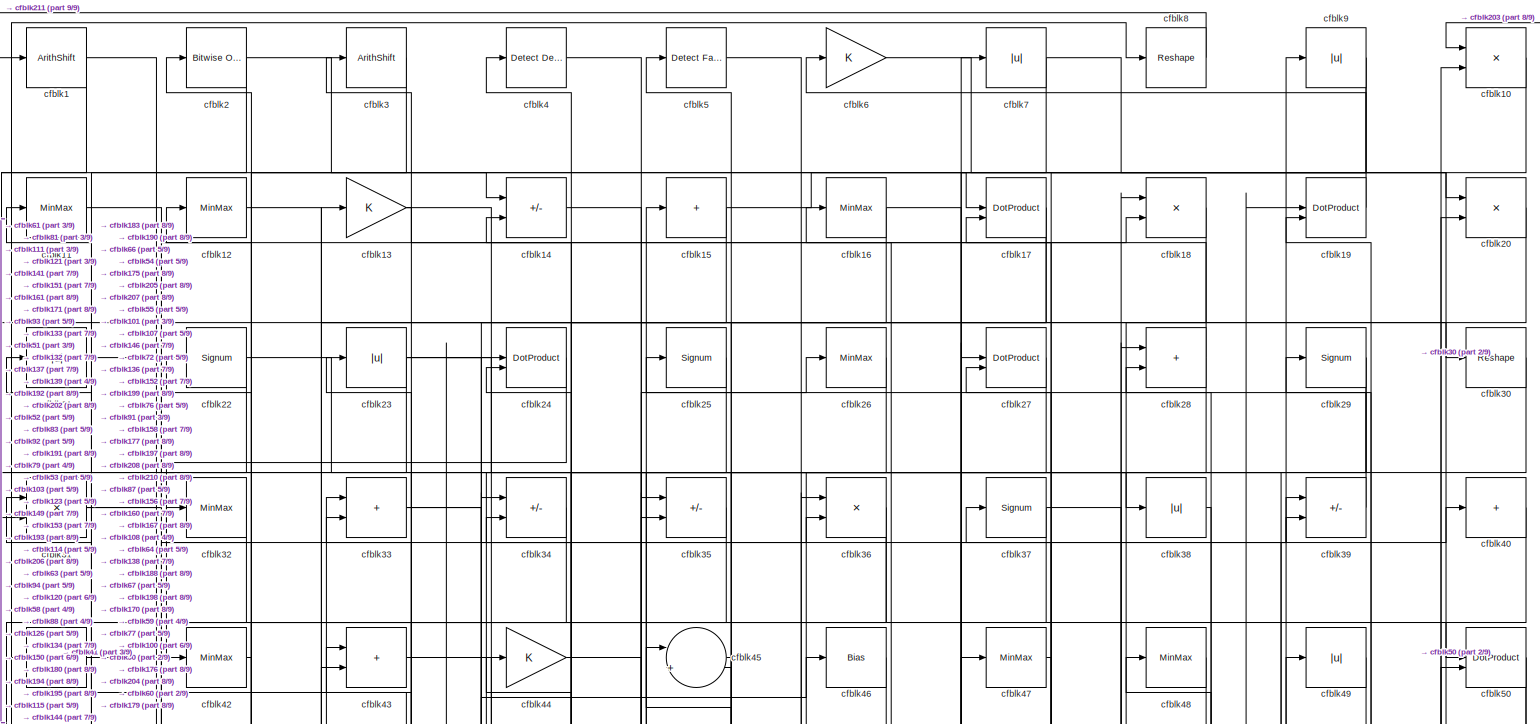
[diagram: root canvas - part 1/9, full width, top band]
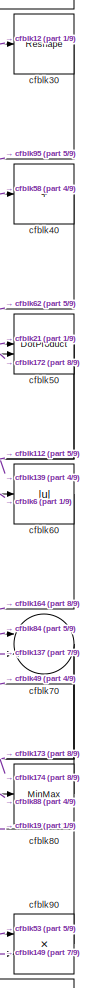
[diagram: root canvas - part 2/9, top right region]
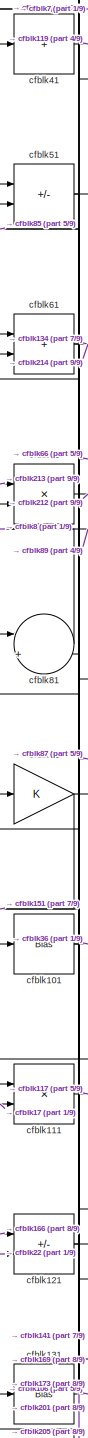
[diagram: root canvas - part 3/9, middle left region]
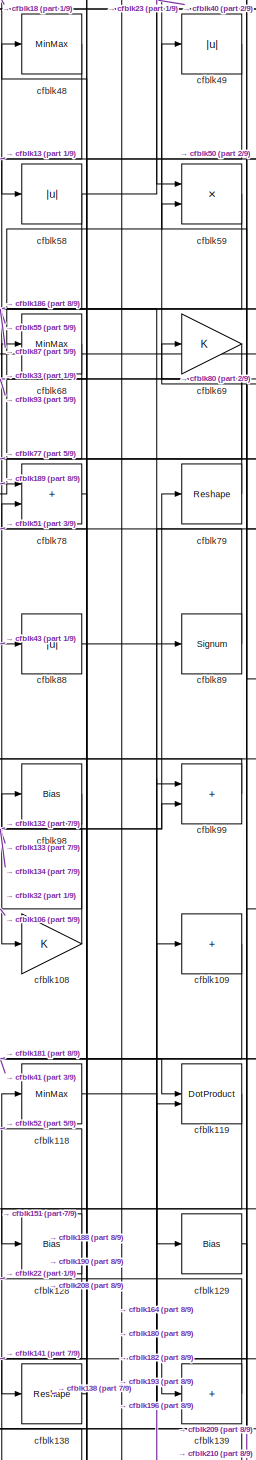
[diagram: root canvas - part 4/9, middle right region]
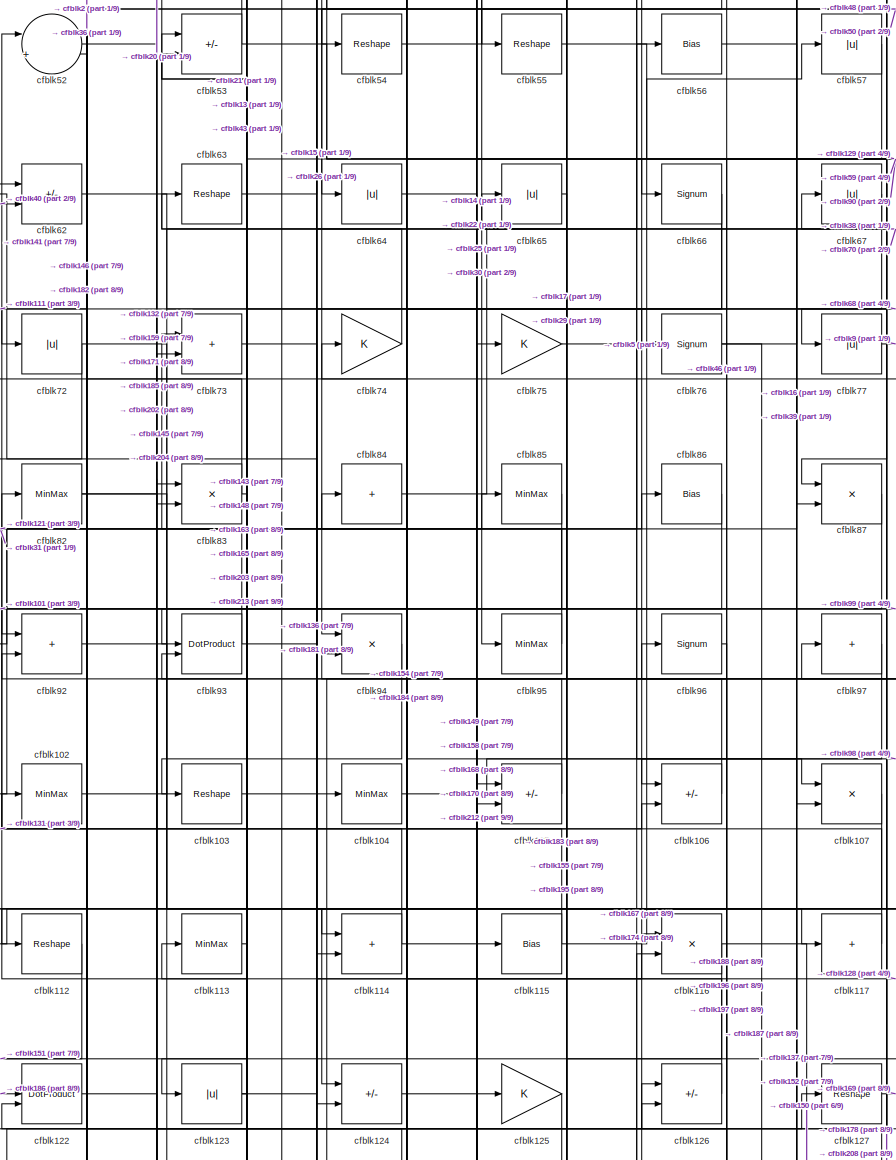
[diagram: root canvas - part 5/9, central region]
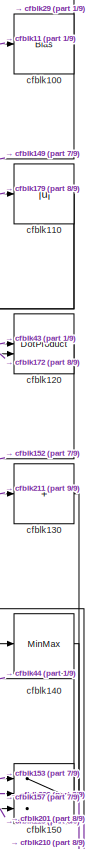
[diagram: root canvas - part 6/9, middle right region]
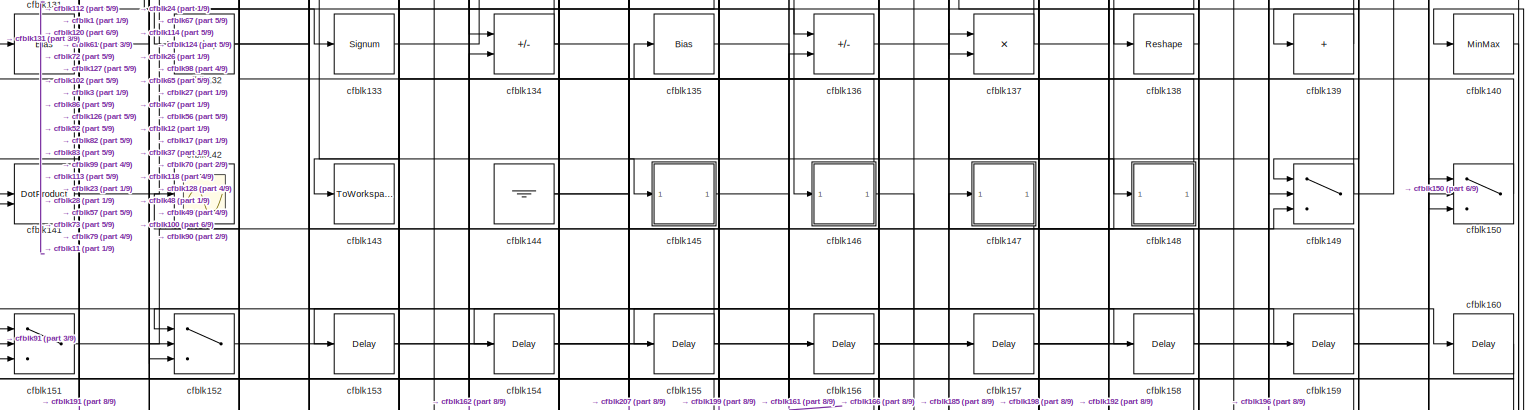
[diagram: root canvas - part 7/9, full width, middle band]
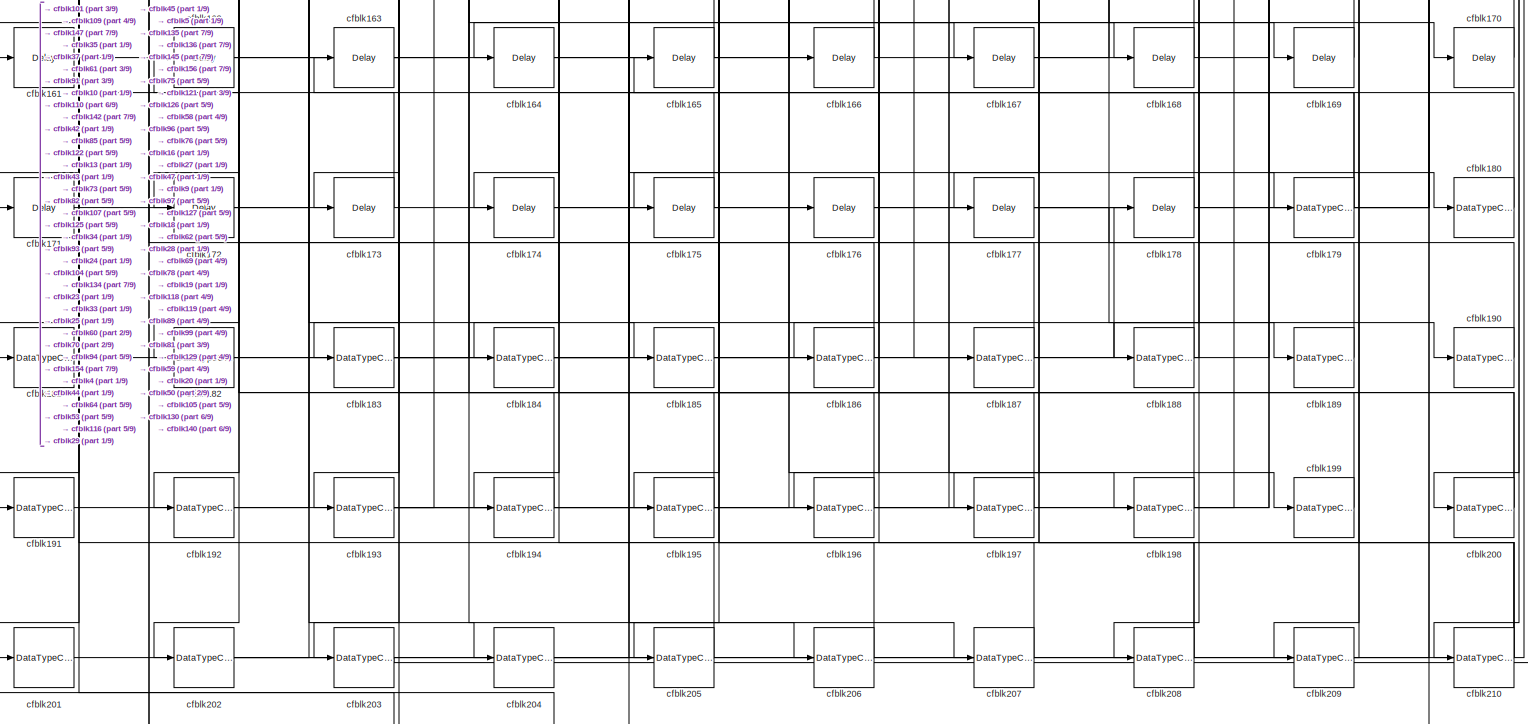
[diagram: root canvas - part 8/9, full width, bottom band]
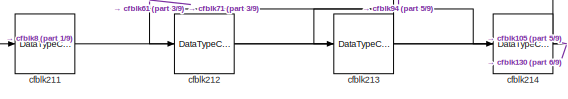
[diagram: root canvas - part 9/9, bottom left region]
MODEL slx_0b9be766a5e4
KIND model
CONFIG AbsTol = auto
CONFIG EnableMultiTasking = off
CONFIG FixedStep = auto
CONFIG MaxStep = auto
CONFIG MinStep = auto
CONFIG RelTol = 1e-3
CONFIG SampleTimeConstraint = Unconstrained
CONFIG SolverName = VariableStepAuto
CONFIG StartTime = 0.0
CONFIG StopTime = 10.0
BLOCK [ArithShift] cfblk1
  BitShiftNumber = 8
  InputPortMap = u0
BLOCK [Product] cfblk10
  Inputs = */
  RndMeth = Zero
  SaturateOnIntegerOverflow = on
BLOCK [Bias] cfblk100
  Bias = 0.0
  SaturateOnIntegerOverflow = off
BLOCK [Bias] cfblk101
  Bias = 0.0
  SaturateOnIntegerOverflow = off
BLOCK [MinMax] cfblk102
BLOCK [Reshape] cfblk103
BLOCK [MinMax] cfblk104
BLOCK [Sum] cfblk105
  IconShape = rectangular
  Inputs = +-
BLOCK [Sum] cfblk106
  IconShape = rectangular
  Inputs = +-
BLOCK [Product] cfblk107
  Inputs = */
  RndMeth = Zero
  SaturateOnIntegerOverflow = on
BLOCK [Gain] cfblk108
BLOCK [Sum] cfblk109
  IconShape = rectangular
  Inputs = +
BLOCK [MinMax] cfblk11
BLOCK [Abs] cfblk110
  SaturateOnIntegerOverflow = off
BLOCK [Product] cfblk111
  Inputs = */
  RndMeth = Zero
  SaturateOnIntegerOverflow = on
BLOCK [Reshape] cfblk112
BLOCK [MinMax] cfblk113
BLOCK [Sum] cfblk114
  IconShape = rectangular
BLOCK [Bias] cfblk115
  Bias = 0.0
  SaturateOnIntegerOverflow = off
BLOCK [Product] cfblk116
  Inputs = */
  RndMeth = Zero
  SaturateOnIntegerOverflow = on
BLOCK [Sum] cfblk117
  IconShape = rectangular
  Inputs = +
BLOCK [MinMax] cfblk118
BLOCK [DotProduct] cfblk119
  OutDataTypeStr = Inherit: Inherit via internal rule
BLOCK [MinMax] cfblk12
BLOCK [DotProduct] cfblk120
  OutDataTypeStr = Inherit: Inherit via internal rule
BLOCK [Sum] cfblk121
  IconShape = rectangular
  Inputs = +-
BLOCK [DotProduct] cfblk122
  OutDataTypeStr = Inherit: Inherit via internal rule
BLOCK [Abs] cfblk123
  SaturateOnIntegerOverflow = off
BLOCK [Sum] cfblk124
  IconShape = rectangular
  Inputs = +-
BLOCK [Gain] cfblk125
BLOCK [Sum] cfblk126
  IconShape = rectangular
  Inputs = +-
BLOCK [Reshape] cfblk127
BLOCK [Bias] cfblk128
  Bias = 0.0
  SaturateOnIntegerOverflow = off
BLOCK [Bias] cfblk129
  Bias = 0.0
  SaturateOnIntegerOverflow = off
BLOCK [Gain] cfblk13
BLOCK [Sum] cfblk130
  IconShape = rectangular
  Inputs = +
BLOCK [Bias] cfblk131
  Bias = 0.0
  SaturateOnIntegerOverflow = off
BLOCK [Reshape] cfblk132
BLOCK [Signum] cfblk133
BLOCK [Sum] cfblk134
  IconShape = rectangular
  Inputs = +-
BLOCK [Bias] cfblk135
  Bias = 0.0
  SaturateOnIntegerOverflow = off
BLOCK [Sum] cfblk136
  IconShape = rectangular
  Inputs = +-
BLOCK [Product] cfblk137
  Inputs = */
  RndMeth = Zero
  SaturateOnIntegerOverflow = on
BLOCK [Reshape] cfblk138
BLOCK [Sum] cfblk139
  IconShape = rectangular
  Inputs = +
BLOCK [Sum] cfblk14
  IconShape = rectangular
  Inputs = +-
BLOCK [MinMax] cfblk140
BLOCK [DotProduct] cfblk141
  OutDataTypeStr = Inherit: Inherit via internal rule
BLOCK [Scope] cfblk142
  Floating = off
  NumInputPorts = 1
  ScopeSpecificationString = Simulink.scopes.TimeScopeBlockCfg('CurrentConfiguration', extmgr.ConfigurationSet(extmgr.Configuration('Core','General UI',true),extmgr.Configuration('Core','Source UI',true),extmgr.Configuration('Sources','WiredSimulink',true,'DataLoggingVariableName','ScopeData2','DataLoggingSaveFormat','Array','DataLoggingLimitDataPoints',true,'DataLoggingDecimation','1'),extmgr.Configuration('Visuals','Time Do...<+868ch>
BLOCK [ToWorkspace] cfblk143
  MaxDataPoints = inf
  SampleTime = -1
  SaveFormat = Timeseries
  VariableName = simout
BLOCK [Ground] cfblk144
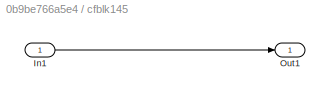
BLOCK [SubSystem] cfblk145
  LibrarySourceBlock = hdlsllib/Ports &\nSubsystems/Subsystem
BLOCK [Inport] cfblk145/In1
BLOCK [Outport] cfblk145/Out1
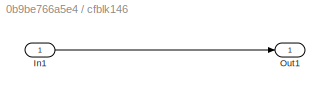
BLOCK [SubSystem] cfblk146
  LibrarySourceBlock = hdlsllib/Ports &\nSubsystems/Subsystem
BLOCK [Inport] cfblk146/In1
BLOCK [Outport] cfblk146/Out1
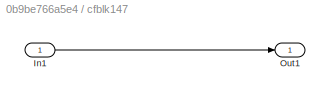
BLOCK [SubSystem] cfblk147
  LibrarySourceBlock = hdlsllib/Ports &\nSubsystems/Subsystem
BLOCK [Inport] cfblk147/In1
BLOCK [Outport] cfblk147/Out1
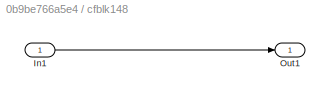
BLOCK [SubSystem] cfblk148
  LibrarySourceBlock = hdlsllib/Ports &\nSubsystems/Subsystem
BLOCK [Inport] cfblk148/In1
BLOCK [Outport] cfblk148/Out1
BLOCK [Switch] cfblk149
  InputSameDT = off
  SaturateOnIntegerOverflow = off
BLOCK [Sum] cfblk15
  IconShape = rectangular
  Inputs = +
BLOCK [Switch] cfblk150
  InputSameDT = off
  SaturateOnIntegerOverflow = off
BLOCK [Switch] cfblk151
  InputSameDT = off
  SaturateOnIntegerOverflow = off
BLOCK [Switch] cfblk152
  InputSameDT = off
  SaturateOnIntegerOverflow = off
BLOCK [Delay] cfblk153
  InputPortMap = u0
  SampleTime = 1
BLOCK [Delay] cfblk154
  InputPortMap = u0
  SampleTime = 1
BLOCK [Delay] cfblk155
  InputPortMap = u0
  SampleTime = 1
BLOCK [Delay] cfblk156
  InputPortMap = u0
  SampleTime = 1
BLOCK [Delay] cfblk157
  InputPortMap = u0
  SampleTime = 1
BLOCK [Delay] cfblk158
  InputPortMap = u0
  SampleTime = 1
BLOCK [Delay] cfblk159
  InputPortMap = u0
  SampleTime = 1
BLOCK [MinMax] cfblk16
BLOCK [Delay] cfblk160
  InputPortMap = u0
  SampleTime = 1
BLOCK [Delay] cfblk161
  InputPortMap = u0
  SampleTime = 1
BLOCK [Delay] cfblk162
  InputPortMap = u0
  SampleTime = 1
BLOCK [Delay] cfblk163
  InputPortMap = u0
  SampleTime = 1
BLOCK [Delay] cfblk164
  InputPortMap = u0
  SampleTime = 1
BLOCK [Delay] cfblk165
  InputPortMap = u0
  SampleTime = 1
BLOCK [Delay] cfblk166
  InputPortMap = u0
  SampleTime = 1
BLOCK [Delay] cfblk167
  InputPortMap = u0
  SampleTime = 1
BLOCK [Delay] cfblk168
  InputPortMap = u0
  SampleTime = 1
BLOCK [Delay] cfblk169
  InputPortMap = u0
  SampleTime = 1
BLOCK [DotProduct] cfblk17
  OutDataTypeStr = Inherit: Inherit via internal rule
BLOCK [Delay] cfblk170
  InputPortMap = u0
  SampleTime = 1
BLOCK [Delay] cfblk171
  InputPortMap = u0
  SampleTime = 1
BLOCK [Delay] cfblk172
  InputPortMap = u0
  SampleTime = 1
BLOCK [Delay] cfblk173
  InputPortMap = u0
  SampleTime = 1
BLOCK [Delay] cfblk174
  InputPortMap = u0
  SampleTime = 1
BLOCK [Delay] cfblk175
  InputPortMap = u0
  SampleTime = 1
BLOCK [Delay] cfblk176
  InputPortMap = u0
  SampleTime = 1
BLOCK [Delay] cfblk177
  InputPortMap = u0
  SampleTime = 1
BLOCK [Delay] cfblk178
  InputPortMap = u0
  SampleTime = 1
BLOCK [DataTypeConversion] cfblk179
  RndMeth = Floor
  SaturateOnIntegerOverflow = off
BLOCK [Product] cfblk18
  Inputs = */
  RndMeth = Zero
  SaturateOnIntegerOverflow = on
BLOCK [DataTypeConversion] cfblk180
  OutDataTypeStr = uint8
  RndMeth = Floor
  SaturateOnIntegerOverflow = off
BLOCK [DataTypeConversion] cfblk181
  OutDataTypeStr = uint8
  RndMeth = Floor
  SaturateOnIntegerOverflow = off
BLOCK [DataTypeConversion] cfblk182
  OutDataTypeStr = uint8
  RndMeth = Floor
  SaturateOnIntegerOverflow = off
BLOCK [DataTypeConversion] cfblk183
  RndMeth = Floor
  SaturateOnIntegerOverflow = off
BLOCK [DataTypeConversion] cfblk184
  OutDataTypeStr = uint8
  RndMeth = Floor
  SaturateOnIntegerOverflow = off
BLOCK [DataTypeConversion] cfblk185
  OutDataTypeStr = uint8
  RndMeth = Floor
  SaturateOnIntegerOverflow = off
BLOCK [DataTypeConversion] cfblk186
  OutDataTypeStr = uint8
  RndMeth = Floor
  SaturateOnIntegerOverflow = off
BLOCK [DataTypeConversion] cfblk187
  OutDataTypeStr = uint8
  RndMeth = Floor
  SaturateOnIntegerOverflow = off
BLOCK [DataTypeConversion] cfblk188
  RndMeth = Floor
  SaturateOnIntegerOverflow = off
BLOCK [DataTypeConversion] cfblk189
  OutDataTypeStr = uint8
  RndMeth = Floor
  SaturateOnIntegerOverflow = off
BLOCK [DotProduct] cfblk19
  OutDataTypeStr = Inherit: Inherit via internal rule
BLOCK [DataTypeConversion] cfblk190
  OutDataTypeStr = uint8
  RndMeth = Floor
  SaturateOnIntegerOverflow = off
BLOCK [DataTypeConversion] cfblk191
  OutDataTypeStr = uint8
  RndMeth = Floor
  SaturateOnIntegerOverflow = off
BLOCK [DataTypeConversion] cfblk192
  OutDataTypeStr = uint8
  RndMeth = Floor
  SaturateOnIntegerOverflow = off
BLOCK [DataTypeConversion] cfblk193
  RndMeth = Floor
  SaturateOnIntegerOverflow = off
BLOCK [DataTypeConversion] cfblk194
  OutDataTypeStr = uint8
  RndMeth = Floor
  SaturateOnIntegerOverflow = off
BLOCK [DataTypeConversion] cfblk195
  OutDataTypeStr = uint8
  RndMeth = Floor
  SaturateOnIntegerOverflow = off
BLOCK [DataTypeConversion] cfblk196
  RndMeth = Floor
  SaturateOnIntegerOverflow = off
BLOCK [DataTypeConversion] cfblk197
  OutDataTypeStr = uint8
  RndMeth = Floor
  SaturateOnIntegerOverflow = off
BLOCK [DataTypeConversion] cfblk198
  RndMeth = Floor
  SaturateOnIntegerOverflow = off
BLOCK [DataTypeConversion] cfblk199
  OutDataTypeStr = uint8
  RndMeth = Floor
  SaturateOnIntegerOverflow = off
BLOCK [Reference] cfblk2  REF=simulink/Logic and Bit
Operations/Bitwise
Operator
  LibrarySourceBlock = hdlsllib/Logic and Bit\nOperations/Bitwise\nOperator
  SourceBlock = simulink/Logic and Bit\nOperations/Bitwise\nOperator
  SourceType = Bitwise Operator
BLOCK [Product] cfblk20
  Inputs = */
  RndMeth = Zero
  SaturateOnIntegerOverflow = on
BLOCK [DataTypeConversion] cfblk200
  RndMeth = Floor
  SaturateOnIntegerOverflow = off
BLOCK [DataTypeConversion] cfblk201
  OutDataTypeStr = uint8
  RndMeth = Floor
  SaturateOnIntegerOverflow = off
BLOCK [DataTypeConversion] cfblk202
  RndMeth = Floor
  SaturateOnIntegerOverflow = off
BLOCK [DataTypeConversion] cfblk203
  OutDataTypeStr = uint8
  RndMeth = Floor
  SaturateOnIntegerOverflow = off
BLOCK [DataTypeConversion] cfblk204
  OutDataTypeStr = uint8
  RndMeth = Floor
  SaturateOnIntegerOverflow = off
BLOCK [DataTypeConversion] cfblk205
  OutDataTypeStr = uint8
  RndMeth = Floor
  SaturateOnIntegerOverflow = off
BLOCK [DataTypeConversion] cfblk206
  OutDataTypeStr = uint8
  RndMeth = Floor
  SaturateOnIntegerOverflow = off
BLOCK [DataTypeConversion] cfblk207
  OutDataTypeStr = uint8
  RndMeth = Floor
  SaturateOnIntegerOverflow = off
BLOCK [DataTypeConversion] cfblk208
  RndMeth = Floor
  SaturateOnIntegerOverflow = off
BLOCK [DataTypeConversion] cfblk209
  OutDataTypeStr = uint8
  RndMeth = Floor
  SaturateOnIntegerOverflow = off
BLOCK [Abs] cfblk21
  SaturateOnIntegerOverflow = off
BLOCK [DataTypeConversion] cfblk210
  RndMeth = Floor
  SaturateOnIntegerOverflow = off
BLOCK [DataTypeConversion] cfblk211
  OutDataTypeStr = uint8
  RndMeth = Floor
  SaturateOnIntegerOverflow = off
BLOCK [DataTypeConversion] cfblk212
  OutDataTypeStr = uint8
  RndMeth = Floor
  SaturateOnIntegerOverflow = off
BLOCK [DataTypeConversion] cfblk213
  OutDataTypeStr = uint8
  RndMeth = Floor
  SaturateOnIntegerOverflow = off
BLOCK [DataTypeConversion] cfblk214
  OutDataTypeStr = uint8
  RndMeth = Floor
  SaturateOnIntegerOverflow = off
BLOCK [Signum] cfblk22
BLOCK [Abs] cfblk23
  SaturateOnIntegerOverflow = off
BLOCK [DotProduct] cfblk24
  OutDataTypeStr = Inherit: Inherit via internal rule
BLOCK [Signum] cfblk25
BLOCK [MinMax] cfblk26
BLOCK [DotProduct] cfblk27
  OutDataTypeStr = Inherit: Inherit via internal rule
BLOCK [Sum] cfblk28
  IconShape = rectangular
BLOCK [Signum] cfblk29
BLOCK [ArithShift] cfblk3
  BitShiftNumber = 8
  InputPortMap = u0
BLOCK [Reshape] cfblk30
BLOCK [Product] cfblk31
  Inputs = */
  RndMeth = Zero
  SaturateOnIntegerOverflow = on
BLOCK [MinMax] cfblk32
BLOCK [Sum] cfblk33
  IconShape = rectangular
BLOCK [Sum] cfblk34
  IconShape = rectangular
  Inputs = +-
BLOCK [Sum] cfblk35
  IconShape = rectangular
  Inputs = +-
BLOCK [Product] cfblk36
  Inputs = */
  RndMeth = Zero
  SaturateOnIntegerOverflow = on
BLOCK [Signum] cfblk37
BLOCK [Abs] cfblk38
  SaturateOnIntegerOverflow = off
BLOCK [Sum] cfblk39
  IconShape = rectangular
  Inputs = +-
BLOCK [Reference] cfblk4  REF=simulink/Logic and Bit
Operations/Detect
Decrease
  LibrarySourceBlock = hdlsllib/Logic and Bit\nOperations/Detect\nDecrease
  SourceBlock = simulink/Logic and Bit\nOperations/Detect\nDecrease
  SourceType = Detect Decrease
BLOCK [Sum] cfblk40
  IconShape = rectangular
  Inputs = +
BLOCK [Sum] cfblk41
  IconShape = rectangular
  Inputs = +
BLOCK [MinMax] cfblk42
BLOCK [Sum] cfblk43
  IconShape = rectangular
BLOCK [Gain] cfblk44
BLOCK [Sum] cfblk45
  Inputs = |++
BLOCK [Bias] cfblk46
  Bias = 0.0
  SaturateOnIntegerOverflow = off
BLOCK [MinMax] cfblk47
BLOCK [MinMax] cfblk48
BLOCK [Abs] cfblk49
  SaturateOnIntegerOverflow = off
BLOCK [Reference] cfblk5  REF=hdlsllib/Logic and Bit
Operations/Detect Fall
Nonpositive
  SourceBlock = hdlsllib/Logic and Bit\nOperations/Detect Fall\nNonpositive
  SourceType = Detect Fall Nonpositive
BLOCK [DotProduct] cfblk50
  OutDataTypeStr = Inherit: Inherit via internal rule
BLOCK [Sum] cfblk51
  IconShape = rectangular
  Inputs = +-
BLOCK [Sum] cfblk52
  Inputs = |++
BLOCK [Sum] cfblk53
  IconShape = rectangular
  Inputs = +-
BLOCK [Reshape] cfblk54
BLOCK [Reshape] cfblk55
BLOCK [Bias] cfblk56
  Bias = 0.0
  SaturateOnIntegerOverflow = off
BLOCK [Abs] cfblk57
  SaturateOnIntegerOverflow = off
BLOCK [Abs] cfblk58
  SaturateOnIntegerOverflow = off
BLOCK [Product] cfblk59
  Inputs = */
  RndMeth = Zero
  SaturateOnIntegerOverflow = on
BLOCK [Gain] cfblk6
BLOCK [Abs] cfblk60
  SaturateOnIntegerOverflow = off
BLOCK [Sum] cfblk61
  IconShape = rectangular
BLOCK [Sum] cfblk62
  IconShape = rectangular
  Inputs = +-
BLOCK [Reshape] cfblk63
BLOCK [Abs] cfblk64
  SaturateOnIntegerOverflow = off
BLOCK [Abs] cfblk65
  SaturateOnIntegerOverflow = off
BLOCK [Signum] cfblk66
BLOCK [Abs] cfblk67
  SaturateOnIntegerOverflow = off
BLOCK [MinMax] cfblk68
BLOCK [Gain] cfblk69
BLOCK [Abs] cfblk7
  SaturateOnIntegerOverflow = off
BLOCK [Sum] cfblk70
  Inputs = |++
BLOCK [Product] cfblk71
  Inputs = */
  RndMeth = Zero
  SaturateOnIntegerOverflow = on
BLOCK [Abs] cfblk72
  SaturateOnIntegerOverflow = off
BLOCK [Sum] cfblk73
  IconShape = rectangular
BLOCK [Gain] cfblk74
BLOCK [Gain] cfblk75
BLOCK [Signum] cfblk76
BLOCK [Abs] cfblk77
  SaturateOnIntegerOverflow = off
BLOCK [Sum] cfblk78
  IconShape = rectangular
BLOCK [Reshape] cfblk79
BLOCK [Reshape] cfblk8
BLOCK [MinMax] cfblk80
BLOCK [Sum] cfblk81
  Inputs = |++
BLOCK [MinMax] cfblk82
BLOCK [Product] cfblk83
  Inputs = */
  RndMeth = Zero
  SaturateOnIntegerOverflow = on
BLOCK [Sum] cfblk84
  IconShape = rectangular
  Inputs = +
BLOCK [MinMax] cfblk85
BLOCK [Bias] cfblk86
  Bias = 0.0
  SaturateOnIntegerOverflow = off
BLOCK [Product] cfblk87
  Inputs = */
  RndMeth = Zero
  SaturateOnIntegerOverflow = on
BLOCK [Abs] cfblk88
  SaturateOnIntegerOverflow = off
BLOCK [Signum] cfblk89
BLOCK [Abs] cfblk9
  SaturateOnIntegerOverflow = off
BLOCK [Product] cfblk90
  Inputs = */
  RndMeth = Zero
  SaturateOnIntegerOverflow = on
BLOCK [Gain] cfblk91
BLOCK [Sum] cfblk92
  IconShape = rectangular
BLOCK [DotProduct] cfblk93
  OutDataTypeStr = Inherit: Inherit via internal rule
BLOCK [Product] cfblk94
  Inputs = */
  RndMeth = Zero
  SaturateOnIntegerOverflow = on
BLOCK [MinMax] cfblk95
BLOCK [Signum] cfblk96
BLOCK [Sum] cfblk97
  IconShape = rectangular
  Inputs = +
BLOCK [Bias] cfblk98
  Bias = 0.0
  SaturateOnIntegerOverflow = off
BLOCK [Sum] cfblk99
  IconShape = rectangular
NET cfblk100:1 -> cfblk149:1, cfblk29:1
NET cfblk101:1 -> cfblk201:1, cfblk36:1
LINE cfblk102:1 -> cfblk56:1
LINE cfblk103:1 -> cfblk86:1
LINE cfblk104:1 -> cfblk107:1
LINE cfblk105:1 -> cfblk74:1
LINE cfblk106:1 -> cfblk65:1
LINE cfblk107:1 -> cfblk203:1
LINE cfblk108:1 -> cfblk32:1
LINE cfblk109:1 -> cfblk181:1
LINE cfblk10:1 -> cfblk202:1
NET cfblk110:1 -> cfblk120:2, cfblk172:1
LINE cfblk111:1 -> cfblk117:1
LINE cfblk112:1 -> cfblk151:1
LINE cfblk113:1 -> cfblk53:1
NET cfblk114:1 -> cfblk149:2, cfblk82:1
NET cfblk115:1 -> cfblk57:1, cfblk92:2
NET cfblk116:1 -> cfblk150:3, cfblk195:1
LINE cfblk117:1 -> cfblk84:1
LINE cfblk118:1 -> cfblk180:1
LINE cfblk119:1 -> cfblk128:1
LINE cfblk11:1 -> cfblk100:1
LINE cfblk120:1 -> cfblk152:2
NET cfblk121:1 -> cfblk51:1, cfblk85:1
LINE cfblk122:1 -> cfblk185:1
NET cfblk123:1 -> cfblk116:1, cfblk43:1
LINE cfblk124:1 -> cfblk158:1
LINE cfblk125:1 -> cfblk183:1
LINE cfblk126:1 -> cfblk14:2
LINE cfblk127:1 -> cfblk169:1
NET cfblk128:1 -> cfblk141:1, cfblk52:1
LINE cfblk129:1 -> cfblk209:1
LINE cfblk12:1 -> cfblk30:1
LINE cfblk130:1 -> cfblk210:1
LINE cfblk131:1 -> cfblk106:2
NET cfblk132:1 -> cfblk126:1, cfblk99:2
LINE cfblk133:1 -> cfblk79:1
NET cfblk134:1 -> cfblk11:1, cfblk24:2, cfblk98:1
LINE cfblk135:1 -> cfblk198:1
LINE cfblk136:1 -> cfblk27:1
NET cfblk137:1 -> cfblk12:1, cfblk70:2
LINE cfblk138:1 -> cfblk48:1
LINE cfblk139:1 -> cfblk22:1
NET cfblk13:1 -> cfblk103:1, cfblk58:1
LINE cfblk140:1 -> cfblk200:1
NET cfblk141:1 -> cfblk127:1, cfblk131:1
NET cfblk144:1 -> cfblk149:3, cfblk26:1
LINE cfblk145/In1:1 -> cfblk145/Out1:1
LINE cfblk145:1 -> cfblk166:1
LINE cfblk146/In1:1 -> cfblk146/Out1:1
NET cfblk146:1 -> cfblk102:1, cfblk157:1
LINE cfblk147/In1:1 -> cfblk147/Out1:1
LINE cfblk147:1 -> cfblk191:1
LINE cfblk148/In1:1 -> cfblk148/Out1:1
LINE cfblk148:1 -> cfblk113:1
NET cfblk149:1 -> cfblk23:1, cfblk90:2
LINE cfblk14:1 -> cfblk66:1
LINE cfblk150:1 -> cfblk44:1
LINE cfblk151:1 -> cfblk118:1
LINE cfblk152:1 -> cfblk47:1
LINE cfblk153:1 -> cfblk150:1
LINE cfblk154:1 -> cfblk207:1
LINE cfblk155:1 -> cfblk83:1
LINE cfblk156:1 -> cfblk28:1
LINE cfblk157:1 -> cfblk150:2
LINE cfblk158:1 -> cfblk17:2
LINE cfblk159:1 -> cfblk137:1
NET cfblk15:1 -> cfblk114:2, cfblk17:1
LINE cfblk160:1 -> cfblk1:1
LINE cfblk161:1 -> cfblk136:2
LINE cfblk162:1 -> cfblk134:2
LINE cfblk163:1 -> cfblk93:2
LINE cfblk164:1 -> cfblk99:1
LINE cfblk165:1 -> cfblk53:2
LINE cfblk166:1 -> cfblk121:1
LINE cfblk167:1 -> cfblk18:1
LINE cfblk168:1 -> cfblk62:1
LINE cfblk169:1 -> cfblk81:1
NET cfblk16:1 -> cfblk114:1, cfblk199:1
LINE cfblk170:1 -> cfblk105:1
LINE cfblk171:1 -> cfblk73:2
LINE cfblk172:1 -> cfblk50:2
LINE cfblk173:1 -> cfblk61:2
LINE cfblk174:1 -> cfblk116:2
LINE cfblk175:1 -> cfblk33:2
LINE cfblk176:1 -> cfblk20:2
LINE cfblk177:1 -> cfblk189:1
LINE cfblk178:1 -> cfblk97:1
NET cfblk179:1 -> cfblk110:1, cfblk35:1, cfblk5:1
NET cfblk17:1 -> cfblk111:2, cfblk55:1
LINE cfblk180:1 -> cfblk4:1
LINE cfblk181:1 -> cfblk104:1
LINE cfblk182:1 -> cfblk109:1
NET cfblk183:1 -> cfblk178:1, cfblk35:2
LINE cfblk184:1 -> cfblk125:1
LINE cfblk185:1 -> cfblk156:1
LINE cfblk186:1 -> cfblk122:1
LINE cfblk187:1 -> cfblk122:2
NET cfblk188:1 -> cfblk126:2, cfblk28:2
LINE cfblk189:1 -> cfblk78:1
LINE cfblk18:1 -> cfblk108:1
LINE cfblk190:1 -> cfblk78:2
LINE cfblk191:1 -> cfblk13:1
LINE cfblk192:1 -> cfblk147:1
NET cfblk193:1 -> cfblk176:1, cfblk24:1, cfblk89:1
LINE cfblk194:1 -> cfblk34:1
LINE cfblk195:1 -> cfblk34:2
NET cfblk196:1 -> cfblk119:2, cfblk142:1
LINE cfblk197:1 -> cfblk96:1
NET cfblk198:1 -> cfblk165:1, cfblk19:1
LINE cfblk199:1 -> cfblk135:1
LINE cfblk19:1 -> cfblk6:1
NET cfblk1:1 -> cfblk133:1, cfblk151:3
NET cfblk200:1 -> cfblk162:1, cfblk163:1
LINE cfblk201:1 -> cfblk140:1
NET cfblk202:1 -> cfblk43:2, cfblk75:1
LINE cfblk203:1 -> cfblk10:1
LINE cfblk204:1 -> cfblk10:2
LINE cfblk205:1 -> cfblk91:1
LINE cfblk206:1 -> cfblk45:1
LINE cfblk207:1 -> cfblk45:2
NET cfblk208:1 -> cfblk27:2, cfblk94:2
LINE cfblk209:1 -> cfblk69:1
LINE cfblk20:1 -> cfblk83:2
NET cfblk210:1 -> cfblk16:1, cfblk37:1, cfblk59:2
LINE cfblk211:1 -> cfblk130:1
LINE cfblk212:1 -> cfblk105:2
LINE cfblk213:1 -> cfblk71:1
LINE cfblk214:1 -> cfblk71:2
LINE cfblk21:1 -> cfblk50:1
NET cfblk22:1 -> cfblk115:1, cfblk121:2
NET cfblk23:1 -> cfblk141:2, cfblk170:1, cfblk59:1
LINE cfblk24:1 -> cfblk42:1
LINE cfblk25:1 -> cfblk194:1
LINE cfblk26:1 -> cfblk94:1
LINE cfblk27:1 -> cfblk146:1
NET cfblk28:1 -> cfblk153:1, cfblk3:1
NET cfblk29:1 -> cfblk175:1, cfblk54:1
NET cfblk2:1 -> cfblk14:1, cfblk31:2
LINE cfblk30:1 -> cfblk95:1
NET cfblk31:1 -> cfblk18:2, cfblk38:1
LINE cfblk32:1 -> cfblk61:1
NET cfblk33:1 -> cfblk206:1, cfblk39:2
LINE cfblk34:1 -> cfblk193:1
LINE cfblk35:1 -> cfblk171:1
NET cfblk36:1 -> cfblk52:2, cfblk92:1
NET cfblk37:1 -> cfblk160:1, cfblk161:1
LINE cfblk38:1 -> cfblk67:1
LINE cfblk39:1 -> cfblk15:1
LINE cfblk3:1 -> cfblk132:1
LINE cfblk40:1 -> cfblk62:2
LINE cfblk41:1 -> cfblk119:1
LINE cfblk42:1 -> cfblk192:1
NET cfblk43:1 -> cfblk120:1, cfblk88:1
LINE cfblk44:1 -> cfblk190:1
LINE cfblk45:1 -> cfblk205:1
LINE cfblk46:1 -> cfblk72:1
LINE cfblk47:1 -> cfblk197:1
LINE cfblk48:1 -> cfblk64:1
LINE cfblk49:1 -> cfblk138:1
LINE cfblk4:1 -> cfblk179:1
NET cfblk50:1 -> cfblk112:1, cfblk139:1
NET cfblk51:1 -> cfblk36:2, cfblk81:2
LINE cfblk52:1 -> cfblk159:1
NET cfblk53:1 -> cfblk21:1, cfblk90:1
LINE cfblk54:1 -> cfblk25:1
LINE cfblk55:1 -> cfblk129:1
LINE cfblk56:1 -> cfblk148:1
LINE cfblk57:1 -> cfblk143:1
NET cfblk58:1 -> cfblk186:1, cfblk40:1
LINE cfblk59:1 -> cfblk87:1
LINE cfblk5:1 -> cfblk107:2
LINE cfblk60:1 -> cfblk164:1
NET cfblk61:1 -> cfblk134:1, cfblk214:1
LINE cfblk62:1 -> cfblk76:1
LINE cfblk63:1 -> cfblk46:1
LINE cfblk64:1 -> cfblk168:1
LINE cfblk65:1 -> cfblk155:1
NET cfblk66:1 -> cfblk111:1, cfblk124:2
LINE cfblk67:1 -> cfblk154:1
LINE cfblk68:1 -> cfblk77:1
LINE cfblk69:1 -> cfblk208:1
LINE cfblk6:1 -> cfblk60:1
NET cfblk70:1 -> cfblk173:1, cfblk174:1
LINE cfblk71:1 -> cfblk212:1
NET cfblk72:1 -> cfblk137:2, cfblk152:3
LINE cfblk73:1 -> cfblk136:1
LINE cfblk74:1 -> cfblk63:1
LINE cfblk75:1 -> cfblk167:1
NET cfblk76:1 -> cfblk187:1, cfblk39:1
LINE cfblk77:1 -> cfblk9:1
LINE cfblk78:1 -> cfblk188:1
LINE cfblk79:1 -> cfblk33:1
NET cfblk7:1 -> cfblk20:1, cfblk41:1
LINE cfblk80:1 -> cfblk49:1
LINE cfblk81:1 -> cfblk8:1
NET cfblk82:1 -> cfblk145:1, cfblk204:1
NET cfblk83:1 -> cfblk123:1, cfblk2:1
LINE cfblk84:1 -> cfblk70:1
LINE cfblk85:1 -> cfblk182:1
LINE cfblk86:1 -> cfblk152:1
LINE cfblk87:1 -> cfblk101:1
LINE cfblk88:1 -> cfblk80:1
LINE cfblk89:1 -> cfblk51:2
LINE cfblk8:1 -> cfblk211:1
LINE cfblk90:1 -> cfblk19:2
NET cfblk91:1 -> cfblk151:2, cfblk7:1
LINE cfblk92:1 -> cfblk124:1
NET cfblk93:1 -> cfblk31:1, cfblk68:1
LINE cfblk94:1 -> cfblk213:1
LINE cfblk95:1 -> cfblk73:1
LINE cfblk96:1 -> cfblk196:1
LINE cfblk97:1 -> cfblk184:1
LINE cfblk98:1 -> cfblk106:1
LINE cfblk99:1 -> cfblk93:1
NET cfblk9:1 -> cfblk177:1, cfblk87:2
note: NET lines group one-source signal fan-out (src -> all destinations, sorted); 1:1 wires keep LINE
